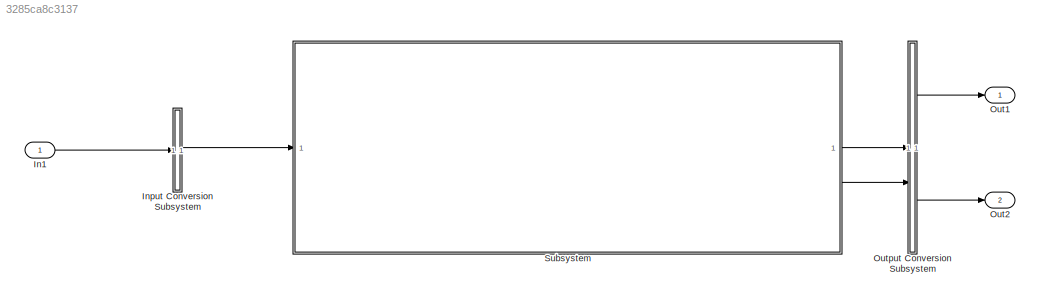
MODEL slx_3285ca8c3137
KIND model
CONFIG AbsTol = auto
CONFIG EnableMultiTasking = off
CONFIG FixedStep = auto
CONFIG MaxStep = auto
CONFIG MinStep = auto
CONFIG RelTol = 1e-3
CONFIG SampleTimeConstraint = Unconstrained
CONFIG SolverName = VariableStepAuto
CONFIG StartTime = 0.0
CONFIG StopTime = 60
BLOCK [Inport] In1
  OutDataTypeStr = double
  PortDimensions = [1]
  SampleTime = 0
  SignalType = real
  VarSizeSig = No
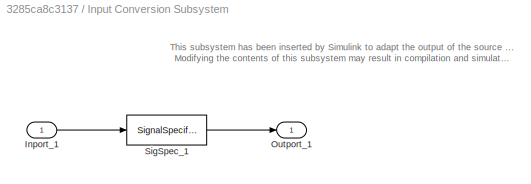
BLOCK [SubSystem] Input Conversion Subsystem
  AttributesFormatString = %<Description>
  Description = Signal spec.\nand routing
  Permissions = ReadOnly
  PermitHierarchicalResolution = ExplicitOnly
  Tag = __SLT_ICS__
  TreatAsGroupedWhenPropagatingVariantConditions = off
  UserDataPersistent = on
BLOCK [Inport] Input Conversion Subsystem/Inport_1
BLOCK [Outport] Input Conversion Subsystem/Outport_1
BLOCK [SignalSpecification] Input Conversion Subsystem/SigSpec_1
  Dimensions = [1]
  OutDataTypeStr = double
  SampleTime = [0, 0]
  SignalType = real
  VarSizeSig = No
BLOCK [Outport] Out1
BLOCK [Outport] Out2
  Port = 2
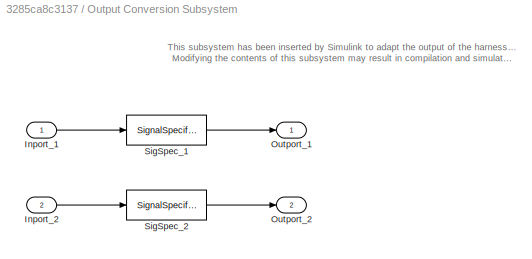
BLOCK [SubSystem] Output Conversion Subsystem
  AttributesFormatString = %<Description>
  Description = Signal spec.\nand routing
  Permissions = ReadOnly
  PermitHierarchicalResolution = ExplicitOnly
  Tag = __SLT_OCS__
  TreatAsGroupedWhenPropagatingVariantConditions = off
  UserDataPersistent = on
BLOCK [Inport] Output Conversion Subsystem/Inport_1
BLOCK [Inport] Output Conversion Subsystem/Inport_2
  Port = 2
BLOCK [Outport] Output Conversion Subsystem/Outport_1
BLOCK [Outport] Output Conversion Subsystem/Outport_2
  Port = 2
BLOCK [SignalSpecification] Output Conversion Subsystem/SigSpec_1
  Dimensions = [1]
  OutDataTypeStr = double
  SignalType = real
  VarSizeSig = No
BLOCK [SignalSpecification] Output Conversion Subsystem/SigSpec_2
  Dimensions = [1]
  OutDataTypeStr = double
  SignalType = real
  VarSizeSig = No
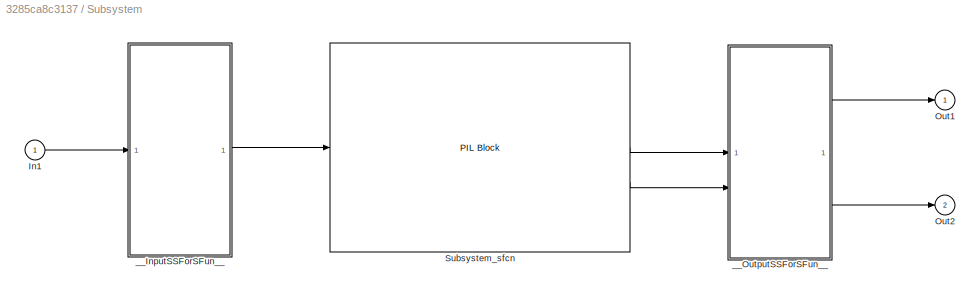
BLOCK [SubSystem] Subsystem
  DialogController = pil_create_dialog
  LoadFcn = try\n   if ~strcmp(rtw.pil.getPILVersion, '23.2 (R2023b)_15')\n      set_param(gcb, 'DialogController', '');\n      set_param(gcb, 'DialogControllerArgs', '');\n   end\ncatch e\n      set_param(gcb, 'DialogController', '');\n      set_param(gcb, 'DialogControllerArgs', '');\nend
BLOCK [Inport] Subsystem/In1
BLOCK [Outport] Subsystem/Out1
BLOCK [Outport] Subsystem/Out2
  Port = 2
BLOCK [Reference] Subsystem/Subsystem_sfcn  REF=pil_lib/PIL Block
  SourceBlock = pil_lib/PIL Block
  SourceType = XILBlock
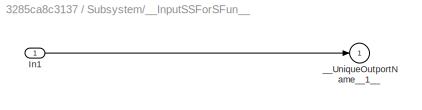
BLOCK [SubSystem] Subsystem/__InputSSForSFun__
  PermitHierarchicalResolution = ExplicitOnly
BLOCK [Inport] Subsystem/__InputSSForSFun__/In1
BLOCK [Outport] Subsystem/__InputSSForSFun__/__UniqueOutportName__1__
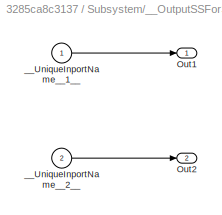
BLOCK [SubSystem] Subsystem/__OutputSSForSFun__
  PermitHierarchicalResolution = ExplicitOnly
BLOCK [Outport] Subsystem/__OutputSSForSFun__/Out1
BLOCK [Outport] Subsystem/__OutputSSForSFun__/Out2
  Port = 2
BLOCK [Inport] Subsystem/__OutputSSForSFun__/__UniqueInportName__1__
BLOCK [Inport] Subsystem/__OutputSSForSFun__/__UniqueInportName__2__
  Port = 2
ANNOTATION Input Conversion Subsystem: This subsystem has been inserted by Simulink to adapt the output of the source blocks to the interface required by the harnessed component. Modifying the contents of this subsystem may result in compilation and simulation failure.
ANNOTATION Output Conversion Subsystem: This subsystem has been inserted by Simulink to adapt the output of the harnessed component to the interface required by the sink blocks. Modifying the contents of this subsystem may result in compilation and simulation failure.
LINE In1:1 -> Input Conversion Subsystem:1
LINE Input Conversion Subsystem/Inport_1:1 -> Input Conversion Subsystem/SigSpec_1:1
LINE Input Conversion Subsystem/SigSpec_1:1 -> Input Conversion Subsystem/Outport_1:1
LINE Input Conversion Subsystem:1 -> Subsystem:1
LINE Output Conversion Subsystem/Inport_1:1 -> Output Conversion Subsystem/SigSpec_1:1
LINE Output Conversion Subsystem/Inport_2:1 -> Output Conversion Subsystem/SigSpec_2:1
LINE Output Conversion Subsystem/SigSpec_1:1 -> Output Conversion Subsystem/Outport_1:1
LINE Output Conversion Subsystem/SigSpec_2:1 -> Output Conversion Subsystem/Outport_2:1
LINE Output Conversion Subsystem:1 -> Out1:1
LINE Output Conversion Subsystem:2 -> Out2:1
LINE Subsystem/In1:1 -> Subsystem/__InputSSForSFun__:1
LINE Subsystem/Subsystem_sfcn:1 -> Subsystem/__OutputSSForSFun__:1
LINE Subsystem/Subsystem_sfcn:2 -> Subsystem/__OutputSSForSFun__:2
LINE Subsystem/__InputSSForSFun__/In1:1 -> Subsystem/__InputSSForSFun__/__UniqueOutportName__1__:1
LINE Subsystem/__InputSSForSFun__:1 -> Subsystem/Subsystem_sfcn:1
LINE Subsystem/__OutputSSForSFun__/__UniqueInportName__1__:1 -> Subsystem/__OutputSSForSFun__/Out1:1
LINE Subsystem/__OutputSSForSFun__/__UniqueInportName__2__:1 -> Subsystem/__OutputSSForSFun__/Out2:1
LINE Subsystem/__OutputSSForSFun__:1 -> Subsystem/Out1:1
LINE Subsystem/__OutputSSForSFun__:2 -> Subsystem/Out2:1
LINE Subsystem:1 -> Output Conversion Subsystem:1
LINE Subsystem:2 -> Output Conversion Subsystem:2
